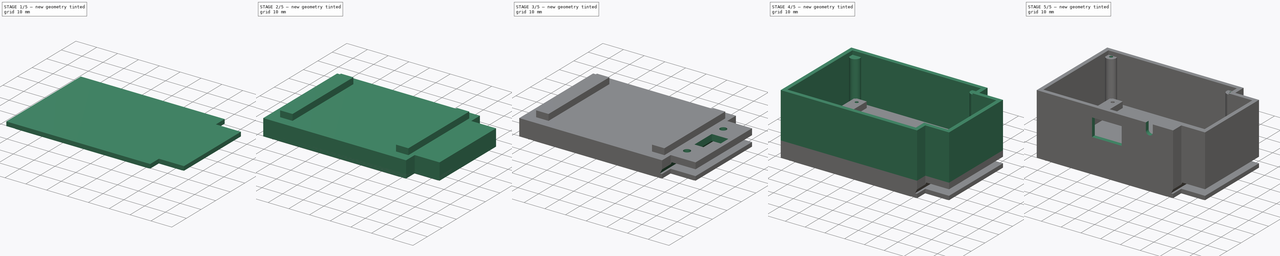
[diagram: build sequence overview — one tinted view per stage of 5, left to right]
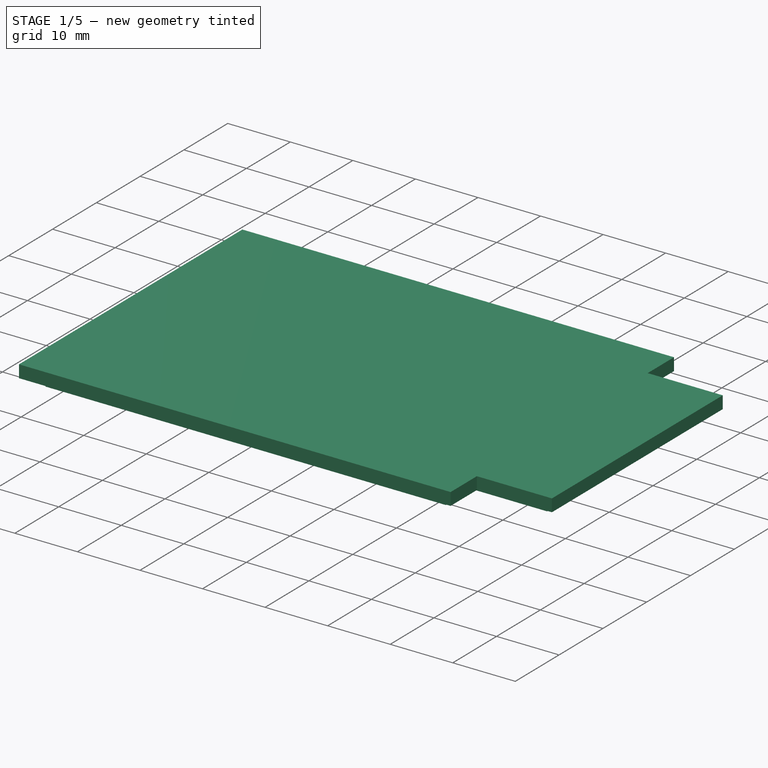
[diagram: stage 1 of 5 — iso view after this stage's code; geometry added in this stage tinted green]
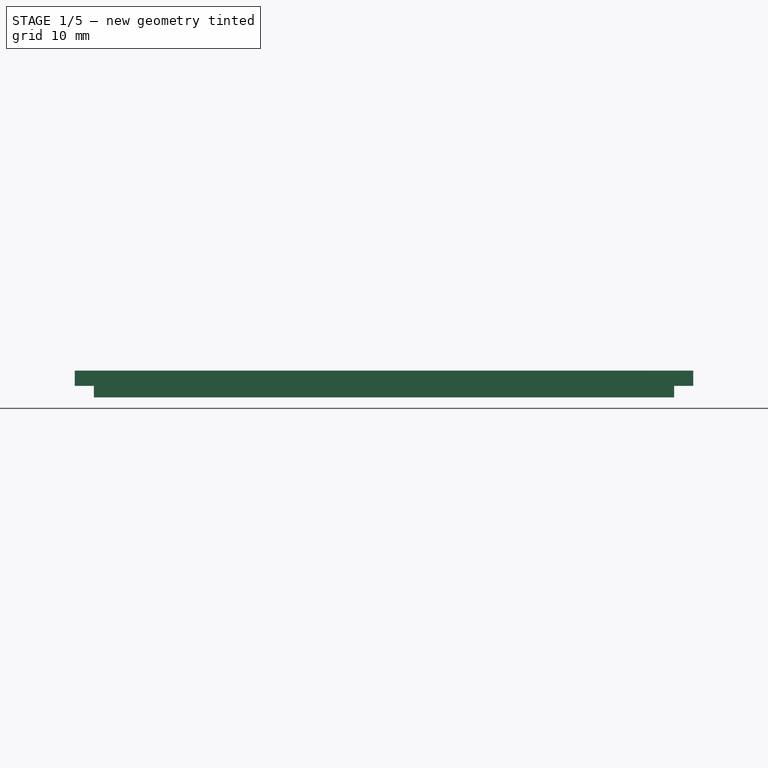
[diagram: stage 1 of 5 — front view after this stage's code; geometry added in this stage tinted green]
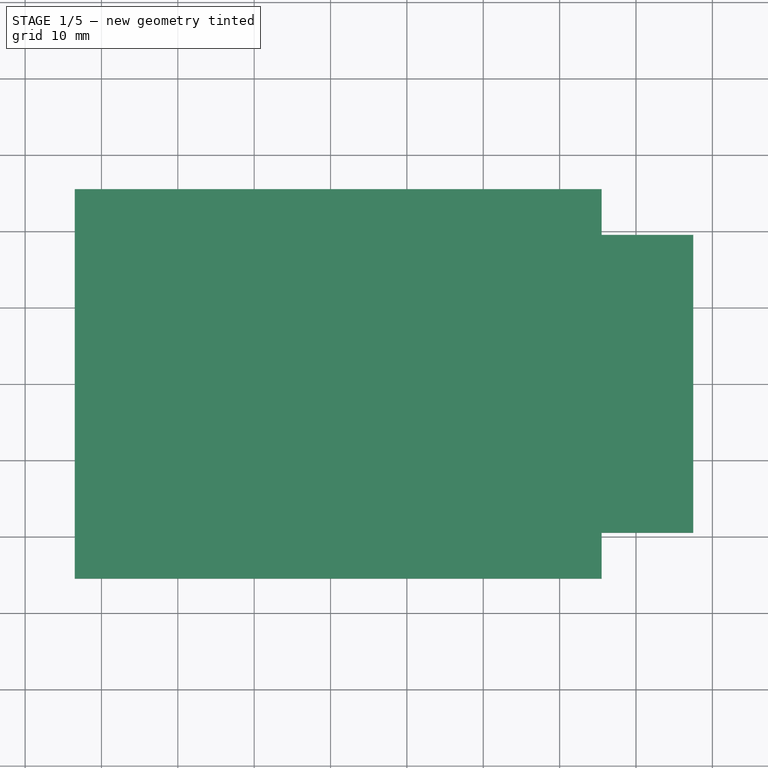
[diagram: stage 1 of 5 — top view after this stage's code; geometry added in this stage tinted green]
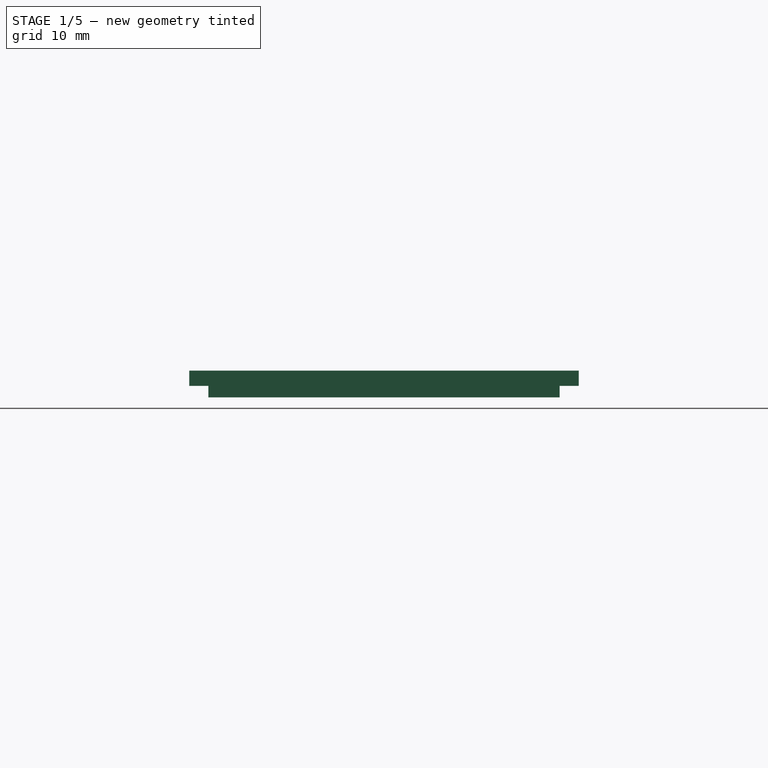
[diagram: stage 1 of 5 — right view after this stage's code; geometry added in this stage tinted green]
FCSTD DOCUMENT  (FreeCAD 1.0R39109 (Git))
Label: SteuerungsGehäuse
License: All rights reserved
LicenseURL: http://en.wikipedia.org/wiki/All_rights_reserved
objects: Sketcher::SketchObject×17, PartDesign::Pocket×10, PartDesign::Pad×7, PartDesign::Body×2
note: 87 computed .brp shape members not serialized (recipe doc carries the construction recipe); baked Part::Feature solids carry a one-line shape summary decoded from their .brp

FEATURE [PartDesign::Body] Body  label="Körper"
  AllowCompound = false
  Group = -> [Sketch,Pad,Sketch001,Pad001,Sketch002,Pad002,Sketch003,Pocket,Sketch004,Pocket001,Sketch005,Pocket002,Sketch006,Pocket003,Sketch007,Pad003,Sketch008,Pad004,Sketch009,Pocket004,Sketch010,Pocket005,Sketch011,Pocket006,Sketch012,Pocket007]
  Origin = -> Origin
  Tip = -> Pocket007
FEATURE [Sketcher::SketchObject] Sketch013
  ArcFitTolerance = 1e-06
  AttachmentSupport = -> [XY_Plane001]
  FullyConstrained = false
  MakeInternals = false
  MapMode = 5
  sketch-geometry (5):
    g0: LineSegment StartX=-43.5 StartY=25.5 StartZ=0 EndX=-43.5 EndY=-25.5 EndZ=0
    g1: LineSegment StartX=-43.5 StartY=-25.5 StartZ=0 EndX=37.5 EndY=-25.5 EndZ=0
    g2: LineSegment StartX=37.5 StartY=-25.5 StartZ=0 EndX=37.5 EndY=25.5 EndZ=0
    g3: LineSegment StartX=37.5 StartY=25.5 StartZ=0 EndX=-43.5 EndY=25.5 EndZ=0
    g4: LineSegment [constr] StartX=0 StartY=0 StartZ=0 EndX=-86.0884 EndY=0 EndZ=0
  constraints (13):
    c: Coincident(g0,g1)
    c: Coincident(g1,g2)
    c: Coincident(g2,g3)
    c: Coincident(g3,g0)
    c: Vertical(g0)
    c: Vertical(g2)
    c: Horizontal(g1)
    c: Horizontal(g3)
    c: DistanceY(g0,g0) = 51
    c: DistanceX(g3,g3) = 81
    c: DistanceX(g0,g-1) = 43.5
    c: Coincident(g4,g-1)
    c: Symmetric(g0,g0,g4)
FEATURE [PartDesign::Pad] Pad005
  Direction = (0,0,1)
  Length = 2
  Length2 = 10
  Profile = -> Sketch013
  ReferenceAxis = -> Sketch013 [N_Axis]
  Suppressed = false
  Type = 0
FEATURE [Sketcher::SketchObject] Sketch014
  ArcFitTolerance = 1e-06
  AttachmentSupport = -> [Pad005]
  ExternalGeometry = -> [Pad005]
  FullyConstrained = true
  MakeInternals = false
  MapMode = 5
  Placement = pos=(0,0,2) rot=(0,0,1;0rad)
  sketch-geometry (8):
    g0: LineSegment StartX=37.5 StartY=25.5 StartZ=0 EndX=25.5 EndY=25.5 EndZ=0
    g1: LineSegment StartX=25.5 StartY=25.5 StartZ=0 EndX=25.5 EndY=19.5 EndZ=0
    g2: LineSegment StartX=25.5 StartY=19.5 StartZ=0 EndX=37.5 EndY=19.5 EndZ=0
    g3: LineSegment StartX=37.5 StartY=19.5 StartZ=0 EndX=37.5 EndY=25.5 EndZ=0
    g4: LineSegment StartX=37.5 StartY=-25.5 StartZ=0 EndX=37.5 EndY=-19.5 EndZ=0
    g5: LineSegment StartX=37.5 StartY=-19.5 StartZ=0 EndX=25.5 EndY=-19.5 EndZ=0
    g6: LineSegment StartX=25.5 StartY=-19.5 StartZ=0 EndX=25.5 EndY=-25.5 EndZ=0
    g7: LineSegment StartX=25.5 StartY=-25.5 StartZ=0 EndX=37.5 EndY=-25.5 EndZ=0
  constraints (22):
    c: Coincident(g0,g1)
    c: Coincident(g1,g2)
    c: Coincident(g2,g3)
    c: Coincident(g3,g0)
    c: Horizontal(g0)
    c: Horizontal(g2)
    c: Vertical(g1)
    c: Vertical(g3)
    c: Coincident(g0,g-4)
    c: Coincident(g4,g5)
    c: Coincident(g5,g6)
    c: Coincident(g6,g7)
    c: Coincident(g7,g4)
    c: Vertical(g4)
    c: Vertical(g6)
    c: Horizontal(g5)
    c: Horizontal(g7)
    c: Coincident(g4,g-5)
    c: Vertical(g1,g5)
    c: DistanceX(g0,g0) = 12
    c: DistanceY(g3,g3) = 6
    c: DistanceY(g4,g4) = 6
FEATURE [PartDesign::Pocket] Pocket008
  BaseFeature = -> Pad005
  Direction = (0,0,-1)
  Length = 2
  Length2 = 5
  Profile = -> Sketch014
  ReferenceAxis = -> Sketch014 [N_Axis]
  Suppressed = false
  Type = 0
FEATURE [Sketcher::SketchObject] Sketch015
  ArcFitTolerance = 1e-06
  AttachmentSupport = -> [Pocket008]
  ExternalGeometry = -> [Pocket008]
  FullyConstrained = true
  MakeInternals = false
  MapMode = 5
  Placement = pos=(0,0,0) rot=(1,0,0;3.14159rad)
  sketch-geometry (8):
    g0: LineSegment StartX=23 StartY=23 StartZ=0 EndX=-41 EndY=23 EndZ=0
    g1: LineSegment StartX=-41 StartY=23 StartZ=0 EndX=-41 EndY=-23 EndZ=0
    g2: LineSegment StartX=-41 StartY=-23 StartZ=0 EndX=23 EndY=-23 EndZ=0
    g3: LineSegment StartX=23 StartY=-23 StartZ=0 EndX=23 EndY=-17 EndZ=0
    g4: LineSegment StartX=23 StartY=-17 StartZ=0 EndX=35 EndY=-17 EndZ=0
    g5: LineSegment StartX=35 StartY=-17 StartZ=0 EndX=35 EndY=17 EndZ=0
    g6: LineSegment StartX=35 StartY=17 StartZ=0 EndX=23 EndY=17 EndZ=0
    g7: LineSegment StartX=23 StartY=17 StartZ=0 EndX=23 EndY=23 EndZ=0
  constraints (24):
    c: Horizontal(g0)
    c: Coincident(g0,g1)
    c: Vertical(g1)
    c: Coincident(g1,g2)
    c: Horizontal(g2)
    c: Coincident(g2,g3)
    c: Vertical(g3)
    c: Coincident(g3,g4)
    c: Horizontal(g4)
    c: Coincident(g4,g5)
    c: Vertical(g5)
    c: Coincident(g5,g6)
    c: Horizontal(g6)
    c: Coincident(g6,g7)
    c: Coincident(g7,g0)
    c: Vertical(g7)
    c: DistanceX(g0,g-10) = 2.5
    c: DistanceX(g5,g-9) = 2.5
    c: DistanceY(g5,g-9) = 2.5
    c: DistanceY(g0,g-10) = 2.5
    c: DistanceX(g-4,g0) = 2.5
    c: DistanceY(g-5,g1) = 2.5
    c: DistanceX(g2,g-6) = 2.5
    c: DistanceY(g-7,g3) = 2.5
FEATURE [PartDesign::Pad] Pad006
  BaseFeature = -> Pocket008
  Direction = (0,0,-1)
  Length = 1.5
  Length2 = 10
  Profile = -> Sketch015
  ReferenceAxis = -> Sketch015 [N_Axis]
  Suppressed = false
  Type = 0
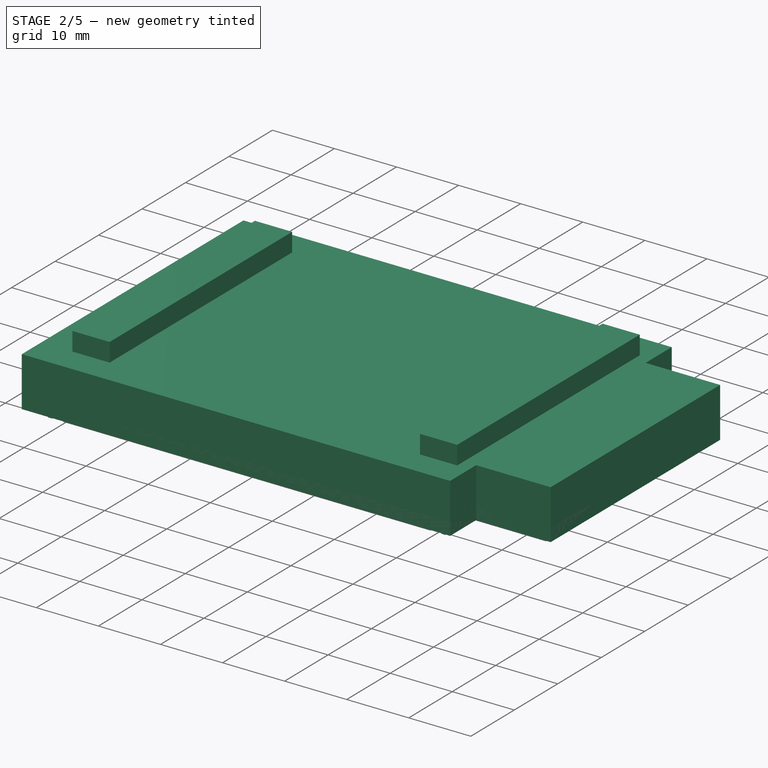
[diagram: stage 2 of 5 — iso view after this stage's code; geometry added in this stage tinted green]
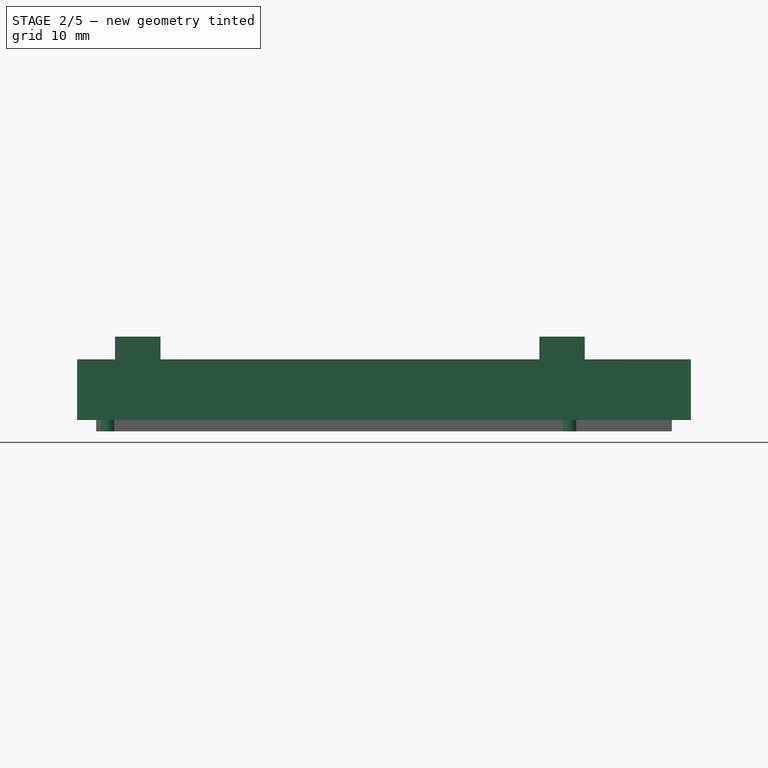
[diagram: stage 2 of 5 — front view after this stage's code; geometry added in this stage tinted green]
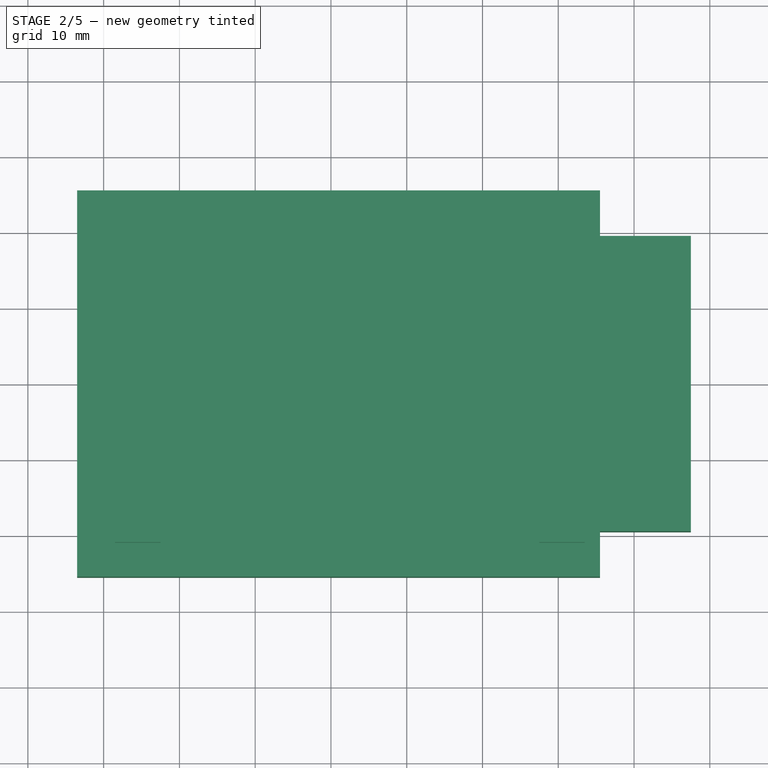
[diagram: stage 2 of 5 — top view after this stage's code; geometry added in this stage tinted green]
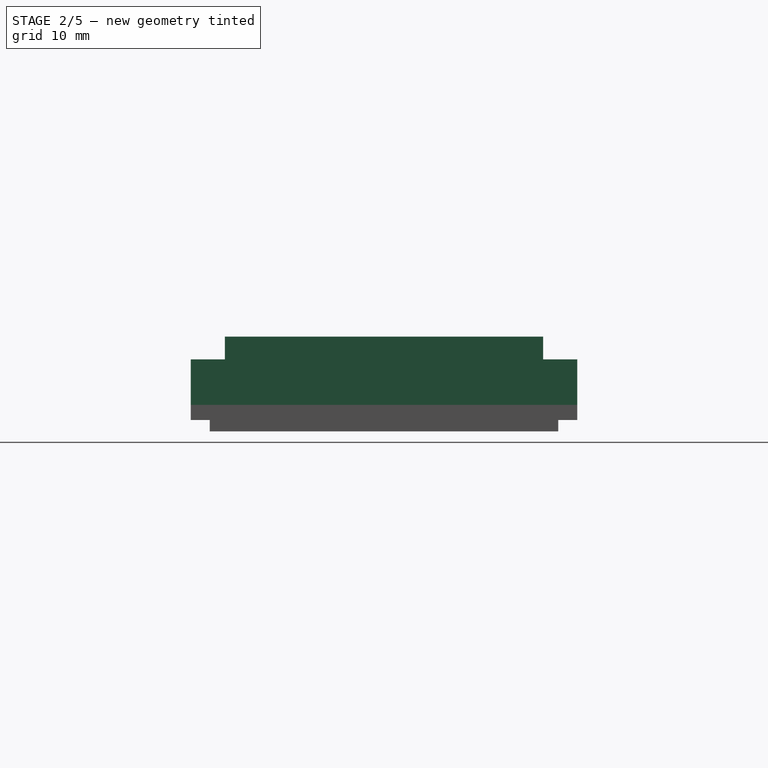
[diagram: stage 2 of 5 — right view after this stage's code; geometry added in this stage tinted green]
FEATURE [Sketcher::SketchObject] Sketch
  ArcFitTolerance = 1e-06
  AttachmentSupport = -> [XY_Plane]
  FullyConstrained = true
  MakeInternals = false
  MapMode = 5
  sketch-geometry (5):
    g0: LineSegment StartX=-37.5 StartY=19.5 StartZ=0 EndX=-37.5 EndY=-19.5 EndZ=0
    g1: LineSegment StartX=-37.5 StartY=-19.5 StartZ=0 EndX=37.5 EndY=-19.5 EndZ=0
    g2: LineSegment StartX=37.5 StartY=-19.5 StartZ=0 EndX=37.5 EndY=19.5 EndZ=0
    g3: LineSegment StartX=37.5 StartY=19.5 StartZ=0 EndX=-37.5 EndY=19.5 EndZ=0
    g4: GeomPoint [constr] X=-1e-16 Y=0 Z=0
  constraints (12):
    c: Coincident(g0,g1)
    c: Coincident(g1,g2)
    c: Coincident(g2,g3)
    c: Coincident(g3,g0)
    c: Vertical(g0)
    c: Vertical(g2)
    c: Horizontal(g1)
    c: Horizontal(g3)
    c: Symmetric(g2,g0,g4)
    c: Coincident(g4,g-1)
    c: DistanceY(g2,g2) = 39
    c: DistanceX(g3,g3) = 75
FEATURE [PartDesign::Pad] Pad
  Direction = (0,0,1)
  Length = 8
  Length2 = 10
  Profile = -> Sketch
  ReferenceAxis = -> Sketch [N_Axis]
  Suppressed = false
  Type = 0
FEATURE [Sketcher::SketchObject] Sketch001
  ArcFitTolerance = 1e-06
  AttachmentSupport = -> [Pad]
  ExternalGeometry = -> [Pad]
  FullyConstrained = false
  MakeInternals = false
  MapMode = 5
  Placement = pos=(0,0,8) rot=(0,0,1;0rad)
  sketch-geometry (9):
    g0: LineSegment StartX=-38.5 StartY=21 StartZ=0 EndX=-38.5 EndY=-21 EndZ=0
    g1: LineSegment StartX=-38.5 StartY=-21 StartZ=0 EndX=-32.5 EndY=-21 EndZ=0
    g2: LineSegment StartX=-32.5 StartY=-21 StartZ=0 EndX=-32.5 EndY=21 EndZ=0
    g3: LineSegment StartX=-32.5 StartY=21 StartZ=0 EndX=-38.5 EndY=21 EndZ=0
    g4: LineSegment StartX=17.5 StartY=21 StartZ=0 EndX=17.5 EndY=-21 EndZ=0
    g5: LineSegment StartX=17.5 StartY=-21 StartZ=0 EndX=23.5 EndY=-21 EndZ=0
    g6: LineSegment StartX=23.5 StartY=-21 StartZ=0 EndX=23.5 EndY=21 EndZ=0
    g7: LineSegment StartX=23.5 StartY=21 StartZ=0 EndX=17.5 EndY=21 EndZ=0
    g8: LineSegment [constr] StartX=-48.1208 StartY=0 StartZ=0 EndX=57.2979 EndY=0 EndZ=0
  constraints (24):
    c: Coincident(g0,g1)
    c: Coincident(g1,g2)
    c: Coincident(g2,g3)
    c: Coincident(g3,g0)
    c: Vertical(g0)
    c: Vertical(g2)
    c: Horizontal(g1)
    c: Horizontal(g3)
    c: Coincident(g4,g5)
    c: Coincident(g5,g6)
    c: Coincident(g6,g7)
    c: Coincident(g7,g4)
    c: Vertical(g6)
    c: Horizontal(g5)
    c: Horizontal(g7)
    c: PointOnObject(g8,g-1)
    c: Symmetric(g2,g1,g8)
    c: Symmetric(g4,g4,g8)
    c: Horizontal(g2,g4)
    c: Equal(g1,g5)
    c: DistanceX(g0,g5) = 62
    c: Distance(g4,g6) = 6
    c: DistanceY(g0,g0) = 42
    c: DistanceX(g0,g-3) = 1
FEATURE [PartDesign::Pad] Pad001
  BaseFeature = -> Pad
  Direction = (0,0,1)
  Length = 3
  Length2 = 10
  Profile = -> Sketch001
  ReferenceAxis = -> Sketch001 [N_Axis]
  Suppressed = false
  Type = 0
FEATURE [Sketcher::SketchObject] Sketch002
  ArcFitTolerance = 1e-06
  AttachmentSupport = -> [XY_Plane]
  ExternalGeometry = -> [Pad001]
  FullyConstrained = true
  MakeInternals = false
  MapMode = 5
  sketch-geometry (8):
    g0: LineSegment StartX=25.5 StartY=19.5 StartZ=0 EndX=-37.5 EndY=19.5 EndZ=0
    g1: LineSegment StartX=-37.5 StartY=19.5 StartZ=0 EndX=-37.5 EndY=-19.5 EndZ=0
    g2: LineSegment StartX=-37.5 StartY=-19.5 StartZ=0 EndX=25.5 EndY=-19.5 EndZ=0
    g3: LineSegment StartX=25.5 StartY=-19.5 StartZ=0 EndX=25.5 EndY=-25.5 EndZ=0
    g4: LineSegment StartX=25.5 StartY=-25.5 StartZ=0 EndX=-43.5 EndY=-25.5 EndZ=0
    g5: LineSegment StartX=-43.5 StartY=-25.5 StartZ=0 EndX=-43.5 EndY=25.5 EndZ=0
    g6: LineSegment StartX=-43.5 StartY=25.5 StartZ=0 EndX=25.5 EndY=25.5 EndZ=0
    g7: LineSegment StartX=25.5 StartY=25.5 StartZ=0 EndX=25.5 EndY=19.5 EndZ=0
  constraints (22):
    c: PointOnObject(g0,g-3)
    c: Coincident(g0,g-4)
    c: Coincident(g0,g1)
    c: Coincident(g1,g-5)
    c: Coincident(g1,g2)
    c: PointOnObject(g2,g-5)
    c: Coincident(g2,g3)
    c: Vertical(g3)
    c: Coincident(g3,g4)
    c: Horizontal(g4)
    c: Coincident(g4,g5)
    c: Vertical(g5)
    c: Coincident(g5,g6)
    c: Horizontal(g6)
    c: Coincident(g6,g7)
    c: Coincident(g7,g0)
    c: Vertical(g7)
    c: Vertical(g0,g2)
    c: Distance(g0,g-3) = 12
    c: Distance(g0,g6) = 6
    c: Distance(g1,g4) = 6
    c: Distance(g1,g5) = 6
FEATURE [PartDesign::Pad] Pad002
  BaseFeature = -> Pad001
  Direction = (0,0,1)
  Length = 8
  Length2 = 10
  Profile = -> Sketch002
  ReferenceAxis = -> Sketch002 [N_Axis]
  Suppressed = false
  Type = 0
FEATURE [Sketcher::SketchObject] Sketch016
  ArcFitTolerance = 1e-06
  AttachmentSupport = -> [Pad006]
  ExternalGeometry = -> [Pad006]
  FullyConstrained = true
  MakeInternals = false
  MapMode = 5
  Placement = pos=(0,0,2) rot=(0,0,1;0rad)
  sketch-geometry (6):
    g0: LineSegment [constr] StartX=-43.5 StartY=25.5 StartZ=0 EndX=25.5 EndY=-25.5 EndZ=0
    g1: LineSegment [constr] StartX=25.5 StartY=25.5 StartZ=0 EndX=-43.5 EndY=-25.5 EndZ=0
    g2: Circle CenterX=-39.4791 CenterY=22.528 CenterZ=0 NormalX=0 NormalY=0 NormalZ=1 AngleXU=0 Radius=1
    g3: Circle CenterX=21.4791 CenterY=22.528 CenterZ=0 NormalX=0 NormalY=0 NormalZ=1 AngleXU=0 Radius=1
    g4: Circle CenterX=21.4791 CenterY=-22.528 CenterZ=0 NormalX=0 NormalY=0 NormalZ=1 AngleXU=0 Radius=1
    g5: Circle CenterX=-39.4791 CenterY=-22.528 CenterZ=0 NormalX=0 NormalY=0 NormalZ=1 AngleXU=0 Radius=1
  constraints (16):
    c: Coincident(g0,g-3)
    c: Coincident(g0,g-4)
    c: Coincident(g1,g-3)
    c: Coincident(g1,g-4)
    c: PointOnObject(g2,g0)
    c: PointOnObject(g3,g1)
    c: PointOnObject(g4,g0)
    c: PointOnObject(g5,g1)
    c: Equal(g2,g3)
    c: Equal(g3,g4)
    c: Equal(g4,g5)
    c: Diameter(g2) = 2
    c: Distance(g2,g0) = 5
    c: Distance(g3,g1) = 5
    c: Distance(g4,g0) = 5
    c: Distance(g5,g1) = 5
FEATURE [PartDesign::Pocket] Pocket009
  BaseFeature = -> Pad006
  Direction = (0,0,-1)
  Length = 5
  Length2 = 5
  Profile = -> Sketch016
  ReferenceAxis = -> Sketch016 [N_Axis]
  Suppressed = false
  Type = 1
FEATURE [PartDesign::Body] Body001  label="Deckel"
  AllowCompound = false
  Group = -> [Sketch013,Pad005,Sketch014,Pocket008,Sketch015,Pad006,Sketch016,Pocket009]
  Origin = -> Origin001
  Placement = pos=(0,0,39) rot=(0,0,1;0rad)
  Tip = -> Pocket009
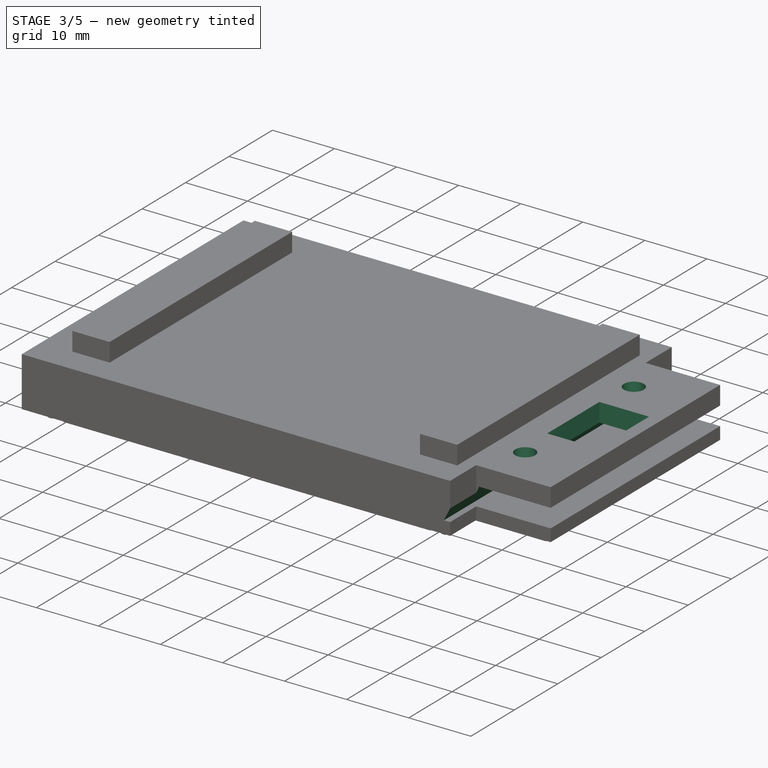
[diagram: stage 3 of 5 — iso view after this stage's code; geometry added in this stage tinted green]
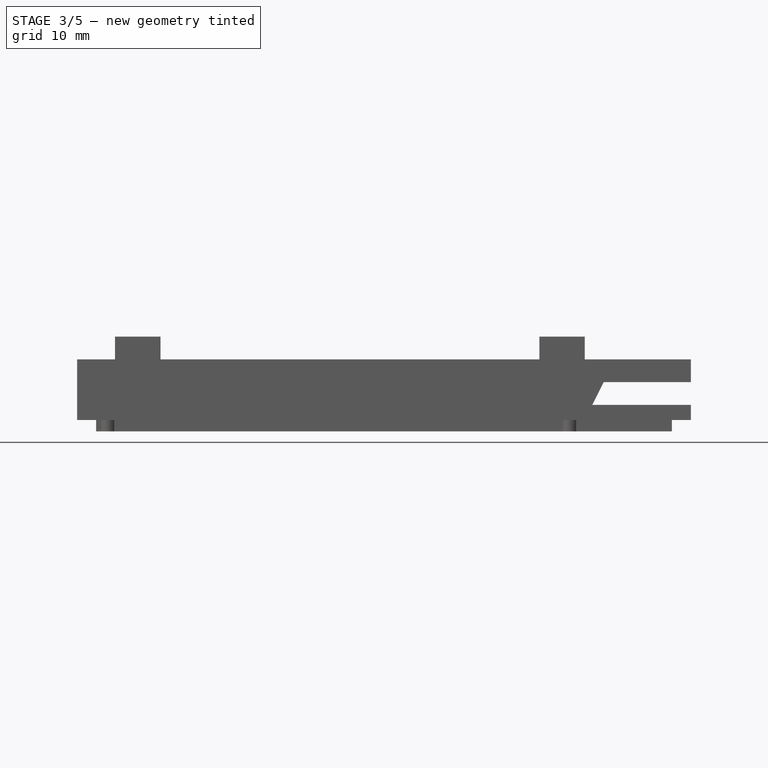
[diagram: stage 3 of 5 — front view after this stage's code; geometry added in this stage tinted green]
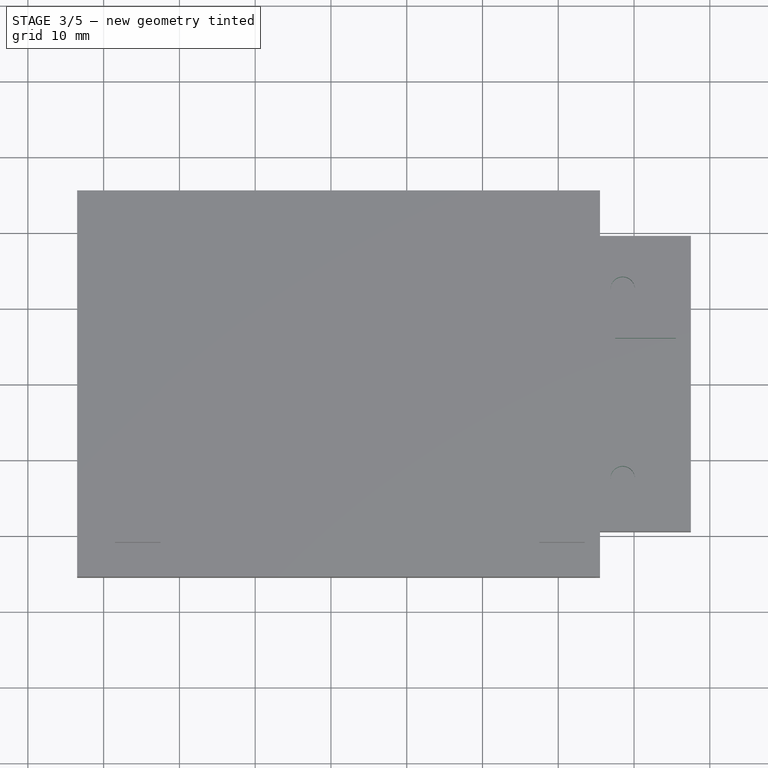
[diagram: stage 3 of 5 — top view after this stage's code; geometry added in this stage tinted green]
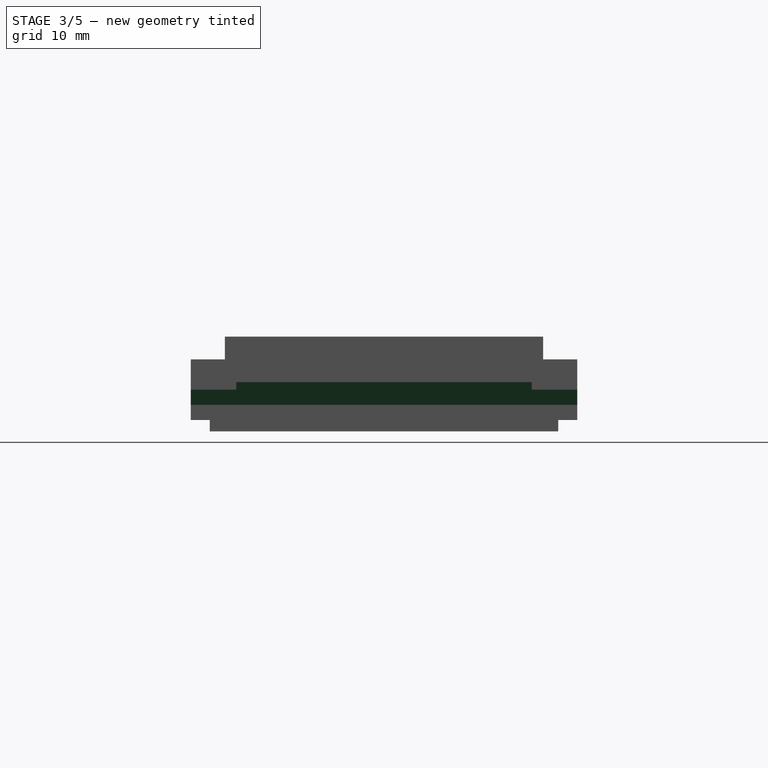
[diagram: stage 3 of 5 — right view after this stage's code; geometry added in this stage tinted green]
FEATURE [Sketcher::SketchObject] Sketch003
  ArcFitTolerance = 1e-06
  AttachmentSupport = -> [Pad002]
  ExternalGeometry = -> [Pad002]
  FullyConstrained = false
  MakeInternals = false
  MapMode = 5
  Placement = pos=(0,0,8) rot=(0,0,1;0rad)
  sketch-geometry (3):
    g0: Circle CenterX=28.5 CenterY=12.5 CenterZ=0 NormalX=0 NormalY=0 NormalZ=1 AngleXU=0 Radius=1.6
    g1: Circle CenterX=28.5 CenterY=-12.5 CenterZ=0 NormalX=0 NormalY=0 NormalZ=1 AngleXU=0 Radius=1.6
    g2: LineSegment [constr] StartX=0 StartY=0 StartZ=0 EndX=61.6094 EndY=0 EndZ=0
  constraints (7):
    c: Equal(g0,g1)
    c: Vertical(g0,g1)
    c: Distance(g0,g-3) = 9
    c: Coincident(g2,g-1)
    c: Symmetric(g0,g1,g2)
    c: DistanceY(g1,g0) = 25
    c: Diameter(g0) = 3.2
FEATURE [PartDesign::Pocket] Pocket
  BaseFeature = -> Pad002
  Direction = (0,0,-1)
  Length = 5
  Length2 = 5
  Profile = -> Sketch003
  ReferenceAxis = -> Sketch003 [N_Axis]
  Suppressed = false
  Type = 1
FEATURE [Sketcher::SketchObject] Sketch004
  ArcFitTolerance = 1e-06
  AttachmentSupport = -> [Pocket]
  ExternalGeometry = -> [Pocket]
  FullyConstrained = true
  MakeInternals = false
  MapMode = 5
  Placement = pos=(0,-19.5,0) rot=(1,0,0;1.5708rad)
  sketch-geometry (4):
    g0: LineSegment StartX=37.5 StartY=5 StartZ=0 EndX=26 EndY=5 EndZ=0
    g1: LineSegment StartX=26 StartY=5 StartZ=0 EndX=23.5 EndY=-1e-16 EndZ=0
    g2: LineSegment StartX=23.5 StartY=-1e-16 StartZ=0 EndX=37.5 EndY=0 EndZ=0
    g3: LineSegment StartX=37.5 StartY=0 StartZ=0 EndX=37.5 EndY=5 EndZ=0
  constraints (11):
    c: Horizontal(g0)
    c: Coincident(g0,g1)
    c: PointOnObject(g1,g-1)
    c: Coincident(g1,g2)
    c: Coincident(g2,g-3)
    c: Coincident(g2,g3)
    c: Coincident(g3,g0)
    c: DistanceX(g0,g0) = 11.5
    c: DistanceX(g2,g2) = 14
    c: DistanceY(g3,g3) = 5
    c: PointOnObject(g0,g-3)
FEATURE [PartDesign::Pocket] Pocket001
  BaseFeature = -> Pocket
  Direction = (0,1,-2e-16)
  Length = 5
  Length2 = 5
  Midplane = true
  Profile = -> Sketch004
  ReferenceAxis = -> Sketch004 [N_Axis]
  Suppressed = false
  Type = 1
FEATURE [Sketcher::SketchObject] Sketch005
  ArcFitTolerance = 1e-06
  AttachmentSupport = -> [Pocket001]
  ExternalGeometry = -> [Pocket001]
  FullyConstrained = true
  MakeInternals = false
  MapMode = 5
  Placement = pos=(0,0,8) rot=(0,0,1;0rad)
  sketch-geometry (5):
    g0: LineSegment StartX=27.5 StartY=6 StartZ=0 EndX=27.5 EndY=-6 EndZ=0
    g1: LineSegment StartX=27.5 StartY=-6 StartZ=0 EndX=35.5 EndY=-6 EndZ=0
    g2: LineSegment StartX=35.5 StartY=-6 StartZ=0 EndX=35.5 EndY=6 EndZ=0
    g3: LineSegment StartX=35.5 StartY=6 StartZ=0 EndX=27.5 EndY=6 EndZ=0
    g4: GeomPoint [constr] X=31.5 Y=0 Z=0
  constraints (13):
    c: Coincident(g0,g1)
    c: Coincident(g1,g2)
    c: Coincident(g2,g3)
    c: Coincident(g3,g0)
    c: Vertical(g0)
    c: Vertical(g2)
    c: Horizontal(g1)
    c: Horizontal(g3)
    c: Symmetric(g2,g0,g4)
    c: PointOnObject(g4,g-1)
    c: DistanceY(g2,g2) = 12
    c: DistanceX(g3,g3) = 8
    c: Distance(g1,g-3) = 2
FEATURE [PartDesign::Pocket] Pocket002
  BaseFeature = -> Pocket001
  Direction = (0,0,-1)
  Length = 5
  Length2 = 5
  Profile = -> Sketch005
  ReferenceAxis = -> Sketch005 [N_Axis]
  Suppressed = false
  Type = 1
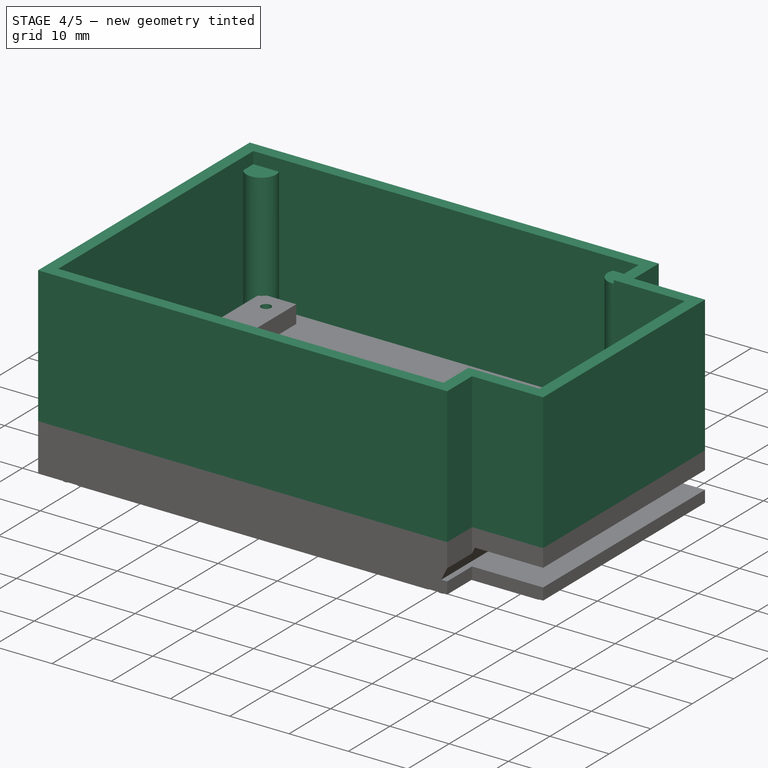
[diagram: stage 4 of 5 — iso view after this stage's code; geometry added in this stage tinted green]
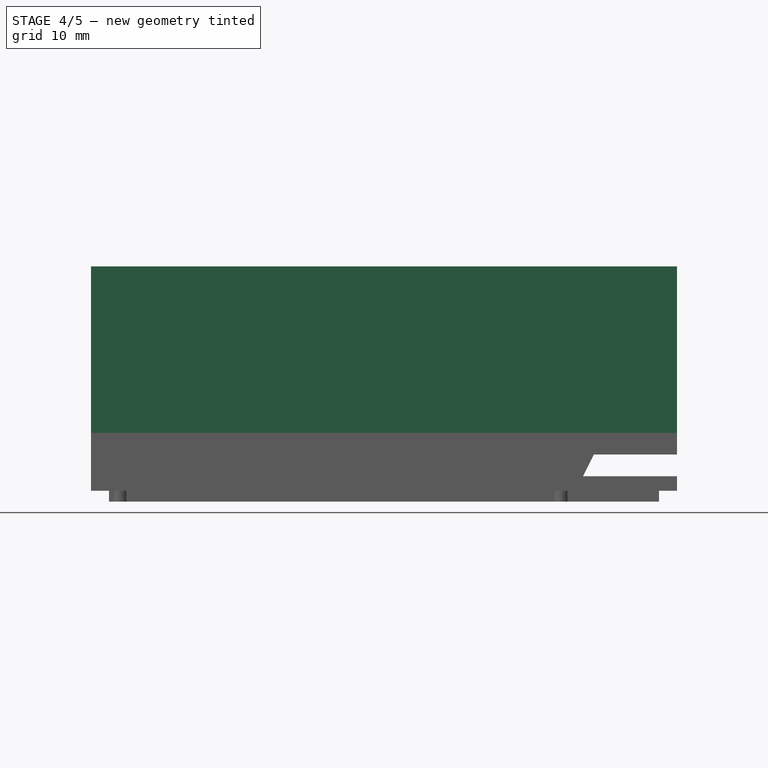
[diagram: stage 4 of 5 — front view after this stage's code; geometry added in this stage tinted green]
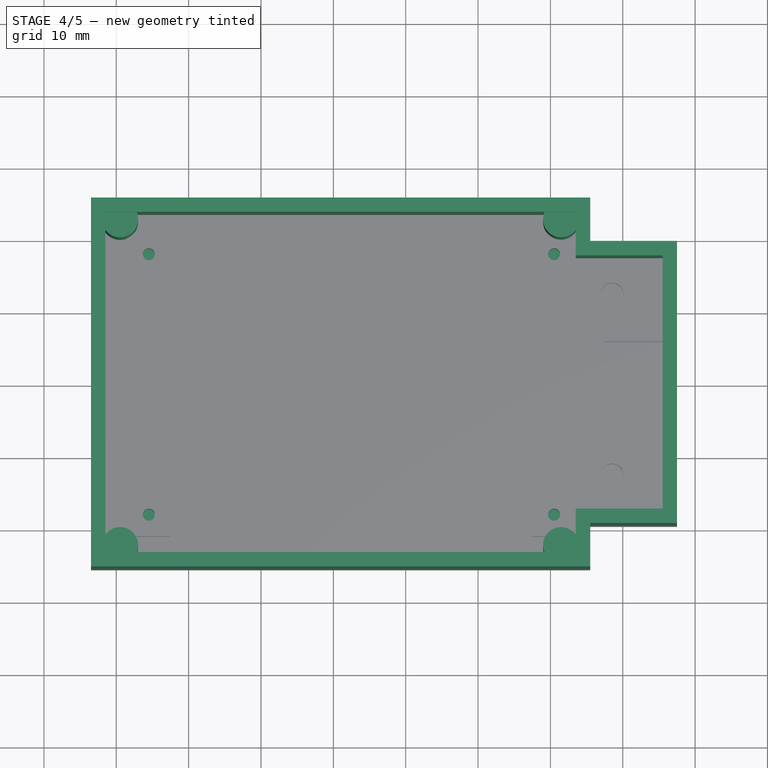
[diagram: stage 4 of 5 — top view after this stage's code; geometry added in this stage tinted green]
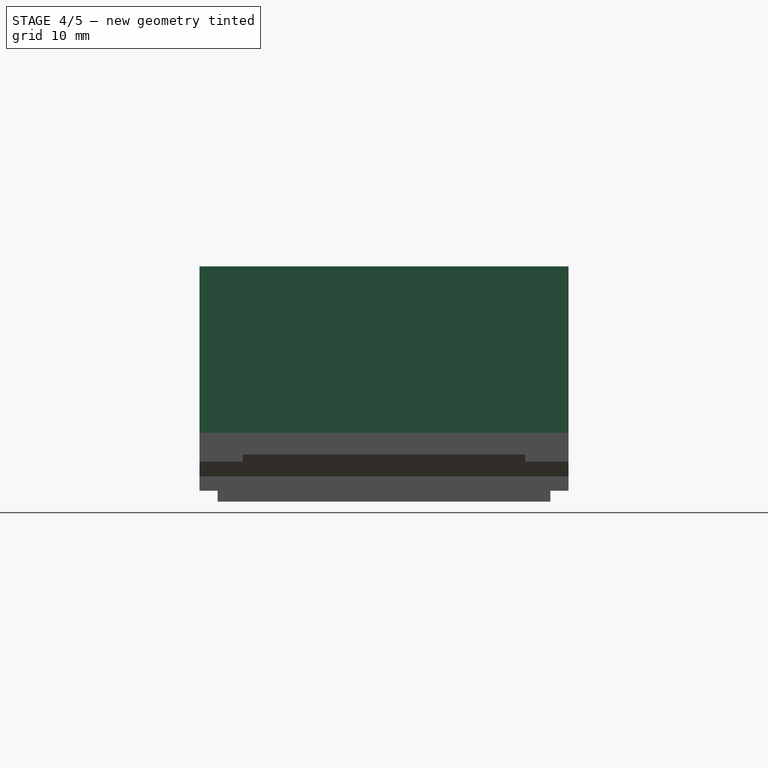
[diagram: stage 4 of 5 — right view after this stage's code; geometry added in this stage tinted green]
FEATURE [Sketcher::SketchObject] Sketch006
  ArcFitTolerance = 1e-06
  AttachmentSupport = -> [Pocket002]
  ExternalGeometry = -> [Pocket002]
  FullyConstrained = false
  MakeInternals = false
  MapMode = 5
  Placement = pos=(0,0,11) rot=(0,0,1;0rad)
  sketch-geometry (5):
    g0: Circle CenterX=-35.5 CenterY=18 CenterZ=0 NormalX=0 NormalY=0 NormalZ=1 AngleXU=0 Radius=0.825
    g1: Circle CenterX=-35.5 CenterY=-18 CenterZ=0 NormalX=0 NormalY=0 NormalZ=1 AngleXU=0 Radius=0.825
    g2: Circle CenterX=20.5 CenterY=18 CenterZ=0 NormalX=0 NormalY=0 NormalZ=1 AngleXU=0 Radius=0.825
    g3: Circle CenterX=20.5 CenterY=-18 CenterZ=0 NormalX=0 NormalY=0 NormalZ=1 AngleXU=0 Radius=0.825
    g4: LineSegment [constr] StartX=-58.7181 StartY=0 StartZ=0 EndX=62.6663 EndY=0 EndZ=0
  constraints (12):
    c: PointOnObject(g4,g-1)
    c: PointOnObject(g4,g-1)
    c: Symmetric(g0,g1,g4)
    c: Symmetric(g2,g3,g4)
    c: DistanceX(g-3,g0) = 3
    c: DistanceX(g2,g-4) = 3
    c: Equal(g0,g2)
    c: Equal(g2,g3)
    c: Equal(g3,g1)
    c: Diameter(g0) = 1.65
    c: DistanceY(g1,g0) = 36
    c: Horizontal(g1,g3)
FEATURE [PartDesign::Pocket] Pocket003
  BaseFeature = -> Pocket002
  Direction = (0,0,-1)
  Length = 5
  Length2 = 5
  Profile = -> Sketch006
  ReferenceAxis = -> Sketch006 [N_Axis]
  Suppressed = false
  Type = 0
FEATURE [Sketcher::SketchObject] Sketch007
  ArcFitTolerance = 1e-06
  AttachmentSupport = -> [Pocket003]
  ExternalGeometry = -> [Pocket003]
  FullyConstrained = true
  MakeInternals = false
  MapMode = 5
  Placement = pos=(0,0,8) rot=(0,0,1;0rad)
  sketch-geometry (16):
    g0: LineSegment StartX=-43.5 StartY=25.5 StartZ=0 EndX=25.5 EndY=25.5 EndZ=0
    g1: LineSegment StartX=25.5 StartY=25.5 StartZ=0 EndX=25.5 EndY=19.5 EndZ=0
    g2: LineSegment StartX=25.5 StartY=19.5 StartZ=0 EndX=37.5 EndY=19.5 EndZ=0
    g3: LineSegment StartX=37.5 StartY=19.5 StartZ=0 EndX=37.5 EndY=-19.5 EndZ=0
    g4: LineSegment StartX=37.5 StartY=-19.5 StartZ=0 EndX=25.5 EndY=-19.5 EndZ=0
    g5: LineSegment StartX=25.5 StartY=-19.5 StartZ=0 EndX=25.5 EndY=-25.5 EndZ=0
    g6: LineSegment StartX=25.5 StartY=-25.5 StartZ=0 EndX=-43.5 EndY=-25.5 EndZ=0
    g7: LineSegment StartX=-43.5 StartY=-25.5 StartZ=0 EndX=-43.5 EndY=25.5 EndZ=0
    g8: LineSegment StartX=-41.5 StartY=23.5 StartZ=0 EndX=23.5 EndY=23.5 EndZ=0
    g9: LineSegment StartX=23.5 StartY=23.5 StartZ=0 EndX=23.5 EndY=17.5 EndZ=0
    g10: LineSegment StartX=23.5 StartY=17.5 StartZ=0 EndX=35.5 EndY=17.5 EndZ=0
    g11: LineSegment StartX=35.5 StartY=17.5 StartZ=0 EndX=35.5 EndY=-17.5 EndZ=0
    g12: LineSegment StartX=35.5 StartY=-17.5 StartZ=0 EndX=23.5 EndY=-17.5 EndZ=0
    g13: LineSegment StartX=23.5 StartY=-17.5 StartZ=0 EndX=23.5 EndY=-23.5 EndZ=0
    g14: LineSegment StartX=23.5 StartY=-23.5 StartZ=0 EndX=-41.5 EndY=-23.5 EndZ=0
    g15: LineSegment StartX=-41.5 StartY=-23.5 StartZ=0 EndX=-41.5 EndY=23.5 EndZ=0
  constraints (41):
    c: Coincident(g-4,g0)
    c: Coincident(g0,g-5)
    c: Coincident(g0,g1)
    c: Coincident(g1,g-6)
    c: Coincident(g1,g2)
    c: Coincident(g2,g-7)
    c: Coincident(g2,g3)
    c: Coincident(g3,g-8)
    c: Coincident(g3,g4)
    c: Horizontal(g4)
    c: Coincident(g4,g5)
    c: Coincident(g5,g-10)
    c: Vertical(g5)
    c: Coincident(g5,g6)
    c: Coincident(g6,g-10)
    c: Coincident(g6,g7)
    c: Coincident(g7,g0)
    c: Horizontal(g8)
    c: Coincident(g8,g9)
    c: Vertical(g9)
    c: Coincident(g9,g10)
    c: Horizontal(g10)
    c: Coincident(g10,g11)
    c: Vertical(g11)
    c: Coincident(g11,g12)
    c: Horizontal(g12)
    c: Coincident(g12,g13)
    c: Vertical(g13)
    c: Coincident(g13,g14)
    c: Horizontal(g14)
    c: Coincident(g14,g15)
    c: Coincident(g15,g8)
    c: Vertical(g15)
    c: DistanceY(g8,g0) = 2
    c: DistanceY(g6,g14) = 2
    c: DistanceX(g6,g14) = 2
    c: DistanceX(g8,g0) = 2
    c: Vertical(g8,g13)
    c: Distance(g10,g2) = 2
    c: DistanceX(g10,g2) = 2
    c: DistanceY(g3,g11) = 2
FEATURE [PartDesign::Pad] Pad003
  BaseFeature = -> Pocket003
  Direction = (0,0,1)
  Length = 23
  Length2 = 10
  Profile = -> Sketch007
  ReferenceAxis = -> Sketch007 [N_Axis]
  Suppressed = false
  Type = 0
FEATURE [Sketcher::SketchObject] Sketch008
  ArcFitTolerance = 1e-06
  AttachmentSupport = -> [Pad003]
  ExternalGeometry = -> [Pad003]
  FullyConstrained = true
  MakeInternals = false
  MapMode = 5
  Placement = pos=(0,0,31) rot=(0,0,1;0rad)
  sketch-geometry (6):
    g0: Circle CenterX=-39.4791 CenterY=22.528 CenterZ=0 NormalX=0 NormalY=0 NormalZ=1 AngleXU=0 Radius=2.5
    g1: Circle CenterX=-39.4791 CenterY=-22.528 CenterZ=0 NormalX=0 NormalY=0 NormalZ=1 AngleXU=0 Radius=2.5
    g2: Circle CenterX=21.4791 CenterY=-22.528 CenterZ=0 NormalX=0 NormalY=0 NormalZ=1 AngleXU=0 Radius=2.5
    g3: Circle CenterX=21.4791 CenterY=22.528 CenterZ=0 NormalX=0 NormalY=0 NormalZ=1 AngleXU=0 Radius=2.5
    g4: LineSegment [constr] StartX=-43.5 StartY=25.5 StartZ=0 EndX=25.5 EndY=-25.5 EndZ=0
    g5: LineSegment [constr] StartX=-43.5 StartY=-25.5 StartZ=0 EndX=25.5 EndY=25.5 EndZ=0
  constraints (16):
    c: Coincident(g4,g-4)
    c: Coincident(g4,g-5)
    c: Coincident(g5,g-5)
    c: Coincident(g5,g-4)
    c: PointOnObject(g0,g4)
    c: PointOnObject(g3,g5)
    c: PointOnObject(g2,g4)
    c: PointOnObject(g1,g5)
    c: Equal(g0,g3)
    c: Equal(g3,g2)
    c: Equal(g2,g1)
    c: Diameter(g0) = 5
    c: Distance(g0,g4) = 5
    c: Distance(g3,g5) = 5
    c: Distance(g2,g4) = 5
    c: Distance(g5,g1) = 5
FEATURE [PartDesign::Pad] Pad004
  BaseFeature = -> Pad003
  Direction = (0,0,1)
  Length = 23
  Length2 = 10
  Profile = -> Sketch008
  ReferenceAxis = -> Sketch008 [N_Axis]
  Reversed = true
  Suppressed = false
  Type = 0
FEATURE [Sketcher::SketchObject] Sketch009
  ArcFitTolerance = 1e-06
  AttachmentSupport = -> [Pad004]
  ExternalGeometry = -> [Pad004]
  FullyConstrained = false
  MakeInternals = false
  MapMode = 5
  Placement = pos=(0,0,31) rot=(0,0,1;0rad)
  sketch-geometry (12):
    g0: ArcOfCircle CenterX=-39.4791 CenterY=22.528 CenterZ=0 NormalX=0 NormalY=0 NormalZ=1 AngleXU=0 Radius=2.5 StartAngle=3.77104 EndAngle=6.68249
    g1: ArcOfCircle CenterX=21.4791 CenterY=22.528 CenterZ=0 NormalX=0 NormalY=0 NormalZ=1 AngleXU=0 Radius=2.5 StartAngle=2.74228 EndAngle=5.65374
    g2: ArcOfCircle CenterX=21.4791 CenterY=-22.528 CenterZ=0 NormalX=0 NormalY=0 NormalZ=1 AngleXU=0 Radius=2.5 StartAngle=0.629449 EndAngle=3.5409
    g3: ArcOfCircle CenterX=-39.4791 CenterY=-22.528 CenterZ=0 NormalX=0 NormalY=0 NormalZ=1 AngleXU=0 Radius=2.5 StartAngle=5.88388 EndAngle=8.79533
    g4: LineSegment StartX=-41.5 StartY=-23.5 StartZ=0 EndX=-41.5 EndY=-21.0563 EndZ=0
    g5: LineSegment StartX=-41.5 StartY=-23.5 StartZ=0 EndX=-37.1758 EndY=-23.5 EndZ=0
    g6: LineSegment StartX=19.1758 StartY=-23.5 StartZ=0 EndX=23.5 EndY=-23.5 EndZ=0
    g7: LineSegment StartX=23.5 StartY=-23.5 StartZ=0 EndX=23.5 EndY=-21.0563 EndZ=0
    g8: LineSegment StartX=19.1758 StartY=23.5 StartZ=0 EndX=23.5 EndY=23.5 EndZ=0
    g9: LineSegment StartX=23.5 StartY=23.5 StartZ=0 EndX=23.5 EndY=21.0563 EndZ=0
    g10: LineSegment StartX=-41.5 StartY=21.0563 StartZ=0 EndX=-41.5 EndY=23.5 EndZ=0
    g11: LineSegment StartX=-41.5 StartY=23.5 StartZ=0 EndX=-37.1758 EndY=23.5 EndZ=0
  constraints (24):
    c: Coincident(g0,g-6)
    c: Coincident(g1,g-7)
    c: Coincident(g2,g-8)
    c: Coincident(g3,g-10)
    c: Coincident(g4,g-11)
    c: Coincident(g4,g-9)
    c: Coincident(g5,g4)
    c: Coincident(g5,g-11)
    c: Coincident(g6,g-12)
    c: Coincident(g6,g-12)
    c: Coincident(g7,g6)
    c: Coincident(g7,g-8)
    c: Coincident(g8,g-13)
    c: Coincident(g8,g-13)
    c: Coincident(g9,g8)
    c: Coincident(g9,g-7)
    c: Coincident(g10,g-5)
    c: Coincident(g10,g-4)
    c: Coincident(g11,g10)
    c: Coincident(g11,g-6)
    c: Coincident(g0,g11)
    c: Coincident(g1,g-7)
    c: Coincident(g2,g-12)
    c: Coincident(g3,g-9)
FEATURE [PartDesign::Pocket] Pocket004
  BaseFeature = -> Pad004
  Direction = (0,0,-1)
  Length = 2
  Length2 = 5
  Profile = -> Sketch009
  ReferenceAxis = -> Sketch009 [N_Axis]
  Suppressed = false
  Type = 0
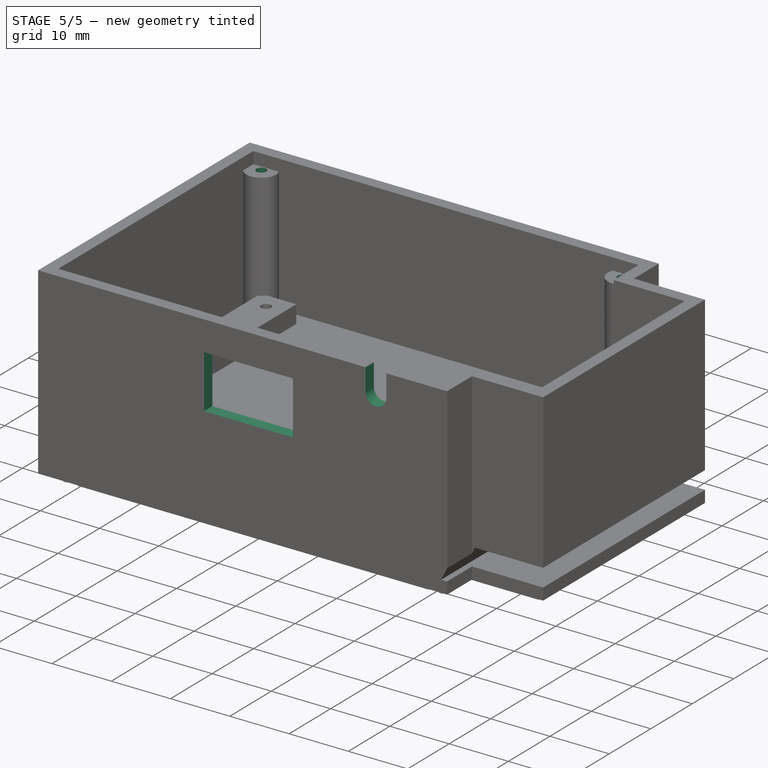
[diagram: stage 5 of 5 — iso view after this stage's code; geometry added in this stage tinted green]
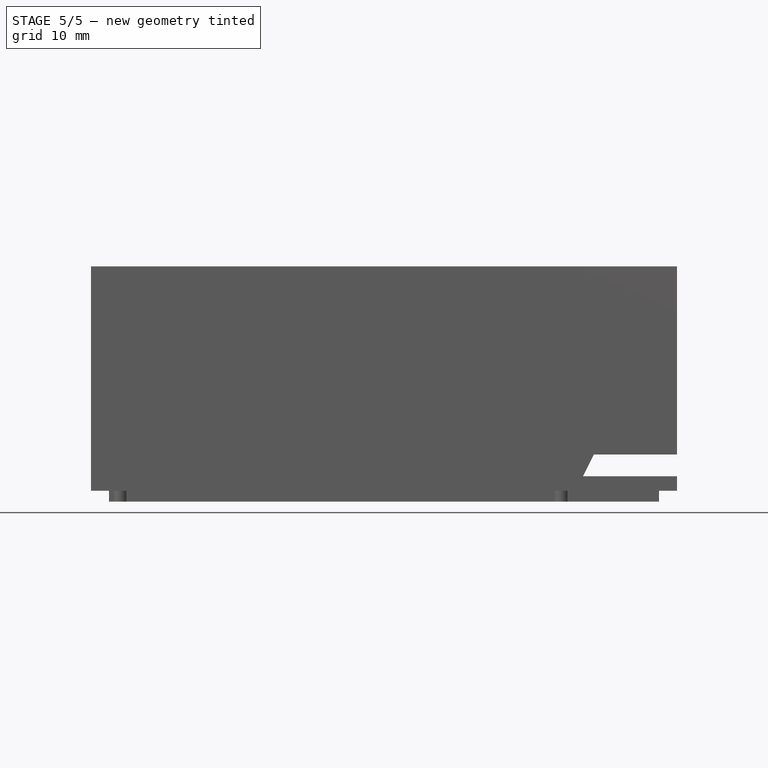
[diagram: stage 5 of 5 — front view after this stage's code; geometry added in this stage tinted green]
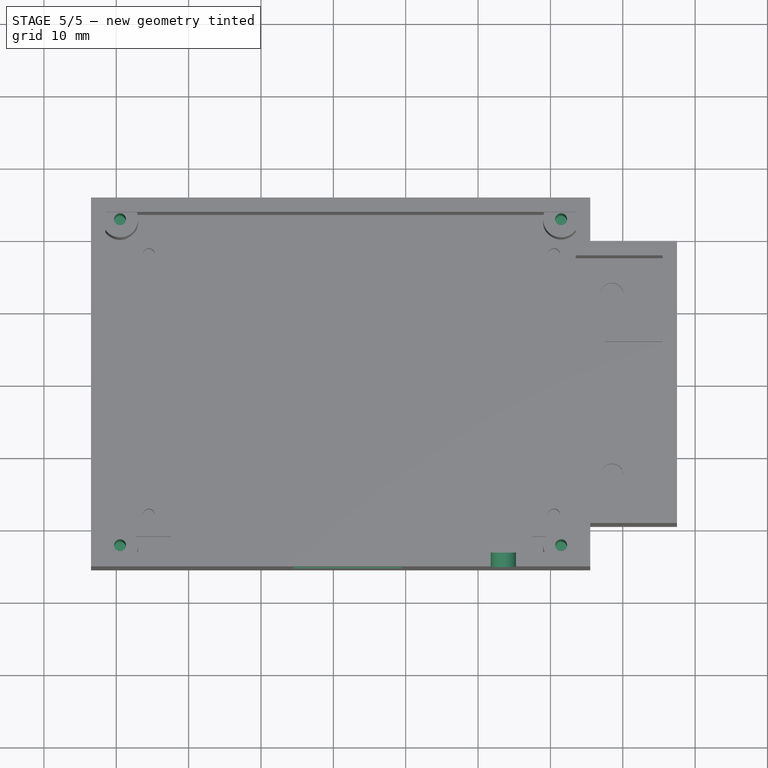
[diagram: stage 5 of 5 — top view after this stage's code; geometry added in this stage tinted green]
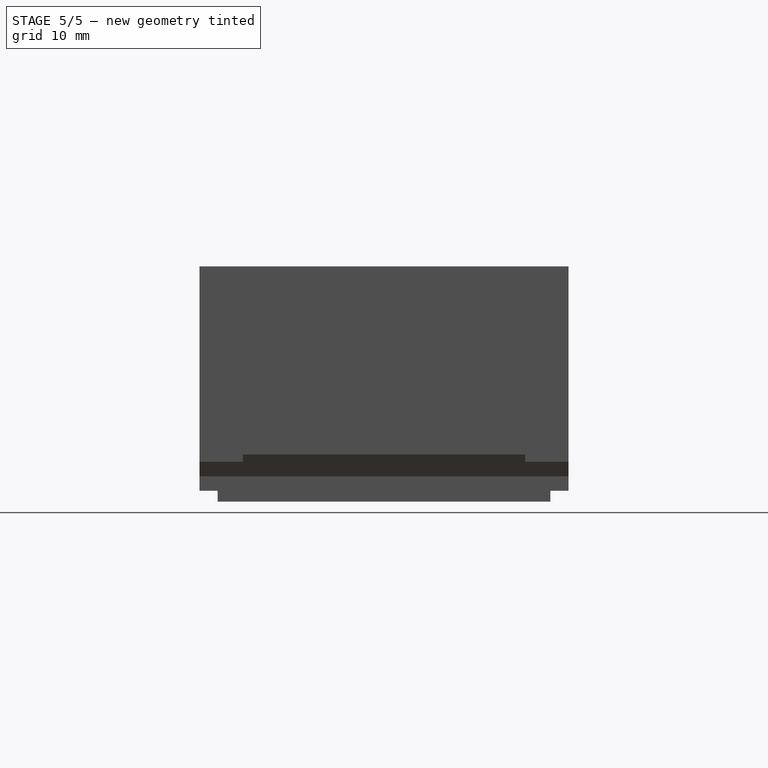
[diagram: stage 5 of 5 — right view after this stage's code; geometry added in this stage tinted green]
FEATURE [Sketcher::SketchObject] Sketch010
  ArcFitTolerance = 1e-06
  AttachmentSupport = -> [Pocket004]
  ExternalGeometry = -> [Pocket004]
  FullyConstrained = true
  MakeInternals = false
  MapMode = 5
  Placement = pos=(0,0,29) rot=(0,0,1;0rad)
  sketch-geometry (4):
    g0: Circle CenterX=-39.4791 CenterY=-22.528 CenterZ=0 NormalX=0 NormalY=0 NormalZ=1 AngleXU=0 Radius=0.825
    g1: Circle CenterX=21.4791 CenterY=-22.528 CenterZ=0 NormalX=0 NormalY=0 NormalZ=1 AngleXU=0 Radius=0.825
    g2: Circle CenterX=21.4791 CenterY=22.528 CenterZ=0 NormalX=0 NormalY=0 NormalZ=1 AngleXU=0 Radius=0.825
    g3: Circle CenterX=-39.4791 CenterY=22.528 CenterZ=0 NormalX=0 NormalY=0 NormalZ=1 AngleXU=0 Radius=0.825
  constraints (8):
    c: Coincident(g0,g-6)
    c: Coincident(g1,g-5)
    c: Coincident(g2,g-4)
    c: Coincident(g3,g-3)
    c: Equal(g3,g2)
    c: Equal(g2,g1)
    c: Equal(g1,g0)
    c: Diameter(g3) = 1.65
FEATURE [PartDesign::Pocket] Pocket005
  BaseFeature = -> Pocket004
  Direction = (0,0,-1)
  Length = 20
  Length2 = 5
  Profile = -> Sketch010
  ReferenceAxis = -> Sketch010 [N_Axis]
  Suppressed = false
  Type = 0
FEATURE [Sketcher::SketchObject] Sketch011
  ArcFitTolerance = 1e-06
  AttachmentSupport = -> [Pocket005]
  ExternalGeometry = -> [Pocket005]
  FullyConstrained = true
  MakeInternals = false
  MapMode = 5
  Placement = pos=(1.3e-15,-25.5,0) rot=(1,0,0;1.5708rad)
  sketch-geometry (4):
    g0: LineSegment StartX=-15.5 StartY=26 StartZ=0 EndX=-15.5 EndY=17 EndZ=0
    g1: LineSegment StartX=-15.5 StartY=17 StartZ=0 EndX=-0.5 EndY=17 EndZ=0
    g2: LineSegment StartX=-0.5 StartY=17 StartZ=0 EndX=-0.5 EndY=26 EndZ=0
    g3: LineSegment StartX=-0.5 StartY=26 StartZ=0 EndX=-15.5 EndY=26 EndZ=0
  constraints (12):
    c: Coincident(g0,g1)
    c: Coincident(g1,g2)
    c: Coincident(g2,g3)
    c: Coincident(g3,g0)
    c: Vertical(g0)
    c: Vertical(g2)
    c: Horizontal(g1)
    c: Horizontal(g3)
    c: DistanceY(g-4,g0) = 9
    c: DistanceY(g2,g2) = 9
    c: DistanceX(g3,g3) = 15
    c: DistanceX(g-4,g0) = 28
FEATURE [PartDesign::Pocket] Pocket006
  BaseFeature = -> Pocket005
  Direction = (0,1,-2e-16)
  Length = 2
  Length2 = 5
  Profile = -> Sketch011
  ReferenceAxis = -> Sketch011 [N_Axis]
  Suppressed = false
  Type = 0
FEATURE [Sketcher::SketchObject] Sketch012
  ArcFitTolerance = 1e-06
  AttachmentSupport = -> [Pocket006]
  ExternalGeometry = -> [Pocket006]
  FullyConstrained = true
  MakeInternals = false
  MapMode = 5
  Placement = pos=(1.3e-15,-25.5,0) rot=(1,0,0;1.5708rad)
  sketch-geometry (4):
    g0: ArcOfCircle CenterX=13.5 CenterY=27.25 CenterZ=0 NormalX=0 NormalY=0 NormalZ=1 AngleXU=0 Radius=1.75 StartAngle=3.14159 EndAngle=6.28319
    g1: LineSegment StartX=11.75 StartY=27.25 StartZ=0 EndX=11.75 EndY=31 EndZ=0
    g2: LineSegment StartX=11.75 StartY=31 StartZ=0 EndX=15.25 EndY=31 EndZ=0
    g3: LineSegment StartX=15.25 StartY=31 StartZ=0 EndX=15.25 EndY=27.25 EndZ=0
  constraints (11):
    c: Diameter(g0) = 3.5
    c: Distance(g0,g-3) = 2
    c: PointOnObject(g1,g-3)
    c: Vertical(g1)
    c: Coincident(g1,g2)
    c: PointOnObject(g2,g-3)
    c: Coincident(g2,g3)
    c: Vertical(g3)
    c: Tangent(g0,g3) = 1.5708
    c: Tangent(g0,g1) = 1.5708
    c: DistanceX(g0,g-3) = 12
FEATURE [PartDesign::Pocket] Pocket007
  BaseFeature = -> Pocket006
  Direction = (0,1,-2e-16)
  Length = 2
  Length2 = 5
  Profile = -> Sketch012
  ReferenceAxis = -> Sketch012 [N_Axis]
  Suppressed = false
  Type = 0
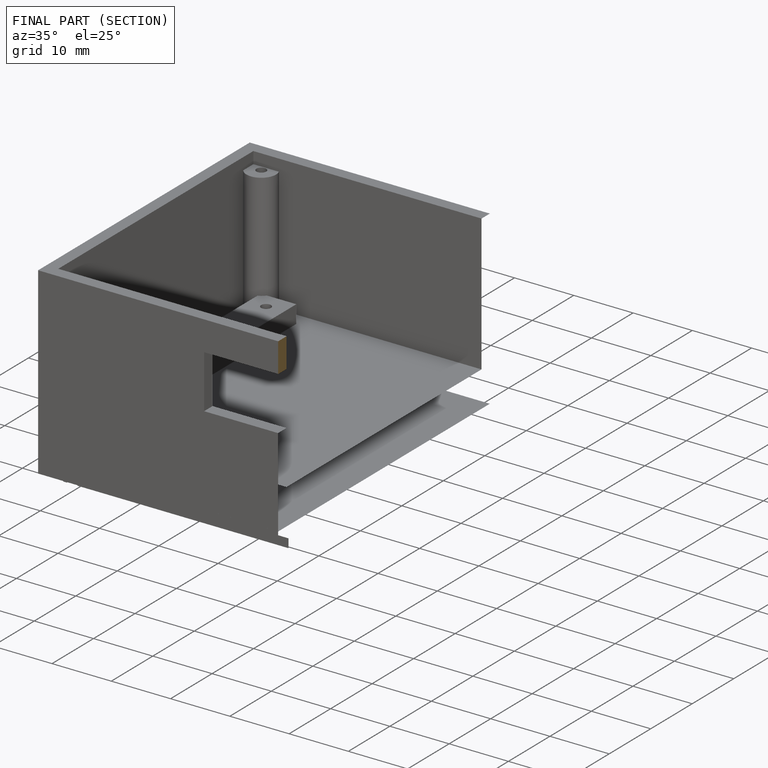
[diagram: finished part — half-section view (interior)]
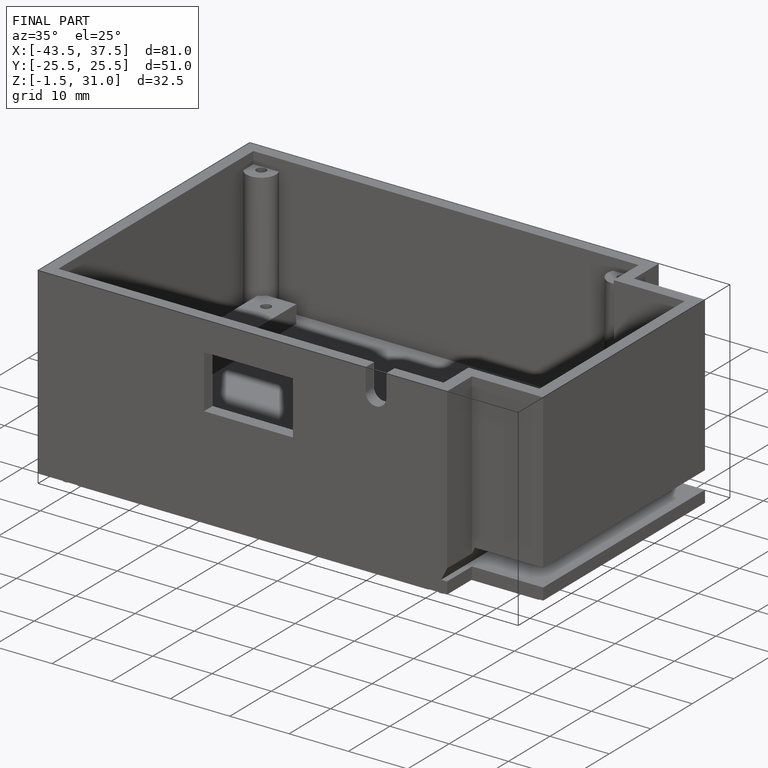
[diagram: finished part — iso view with bounding-box wireframe]
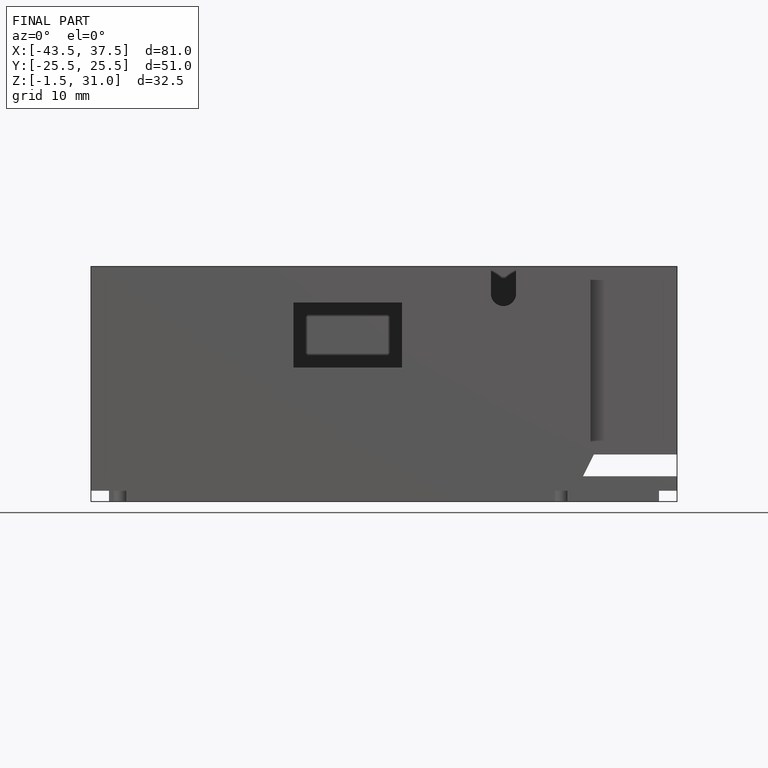
[diagram: finished part — front view with bounding-box wireframe]
